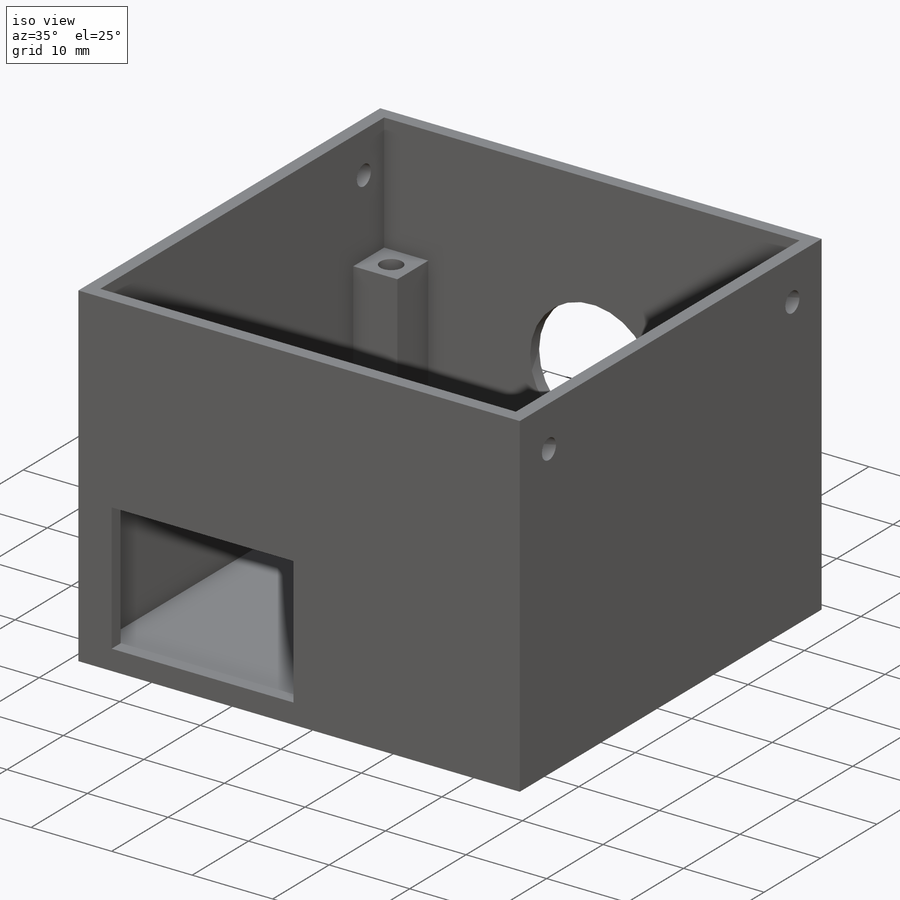
[diagram: iso view]
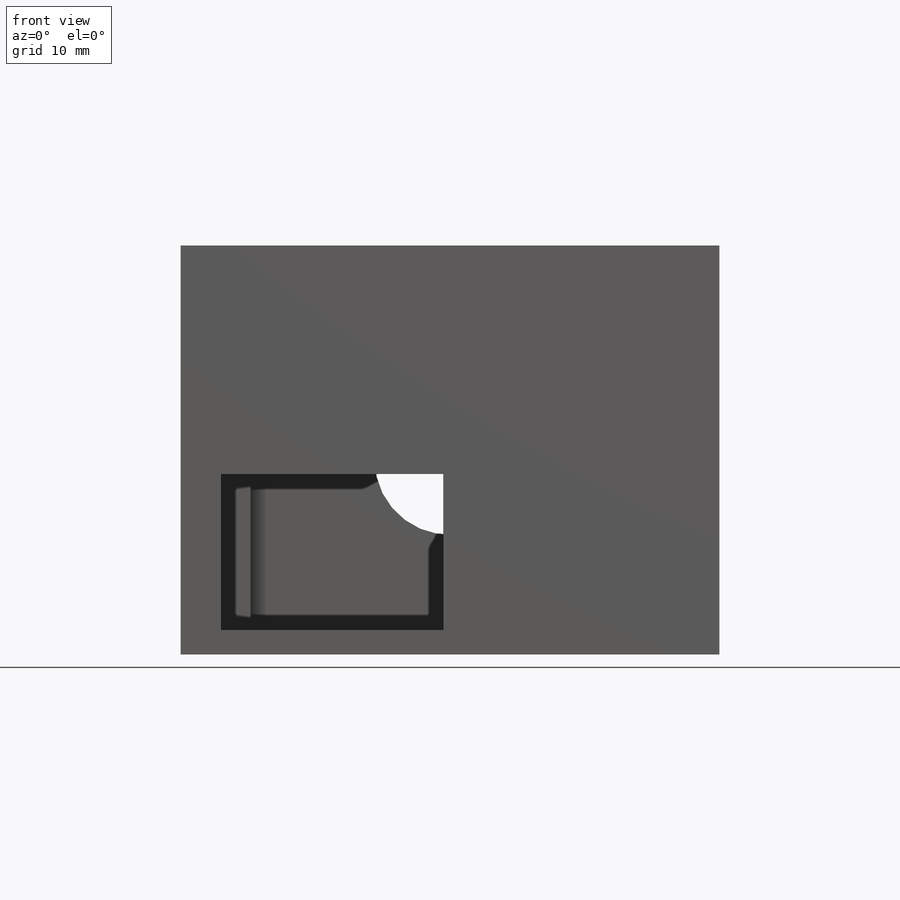
[diagram: front view]
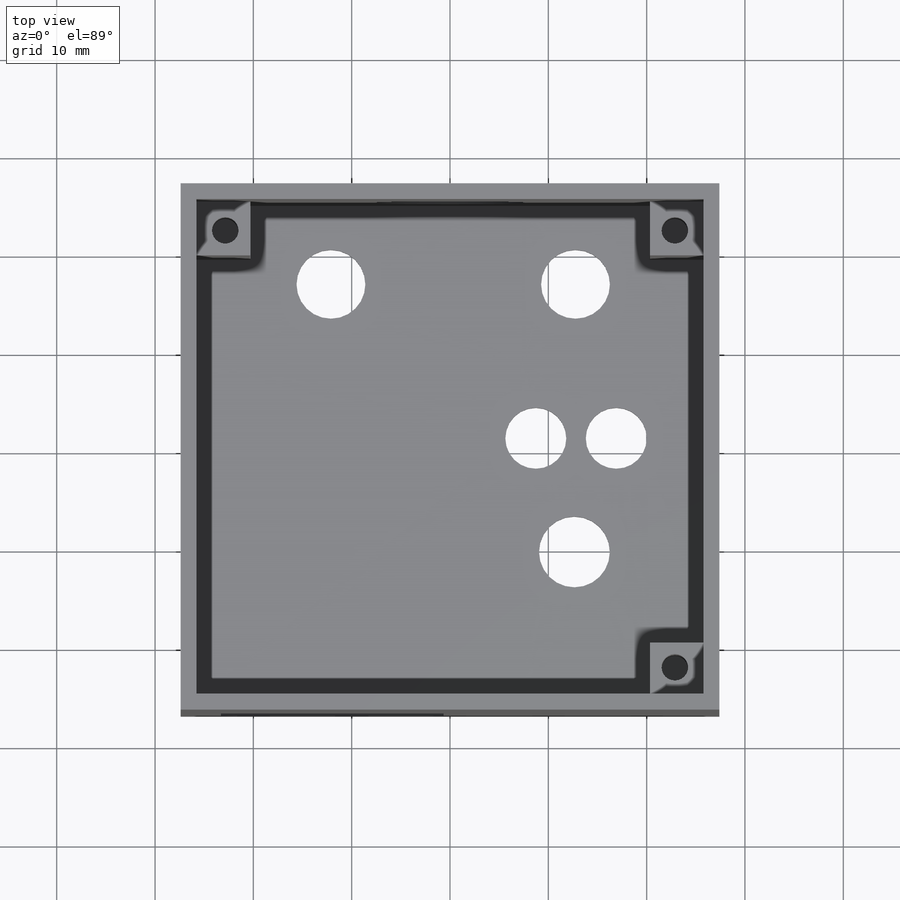
[diagram: top view]
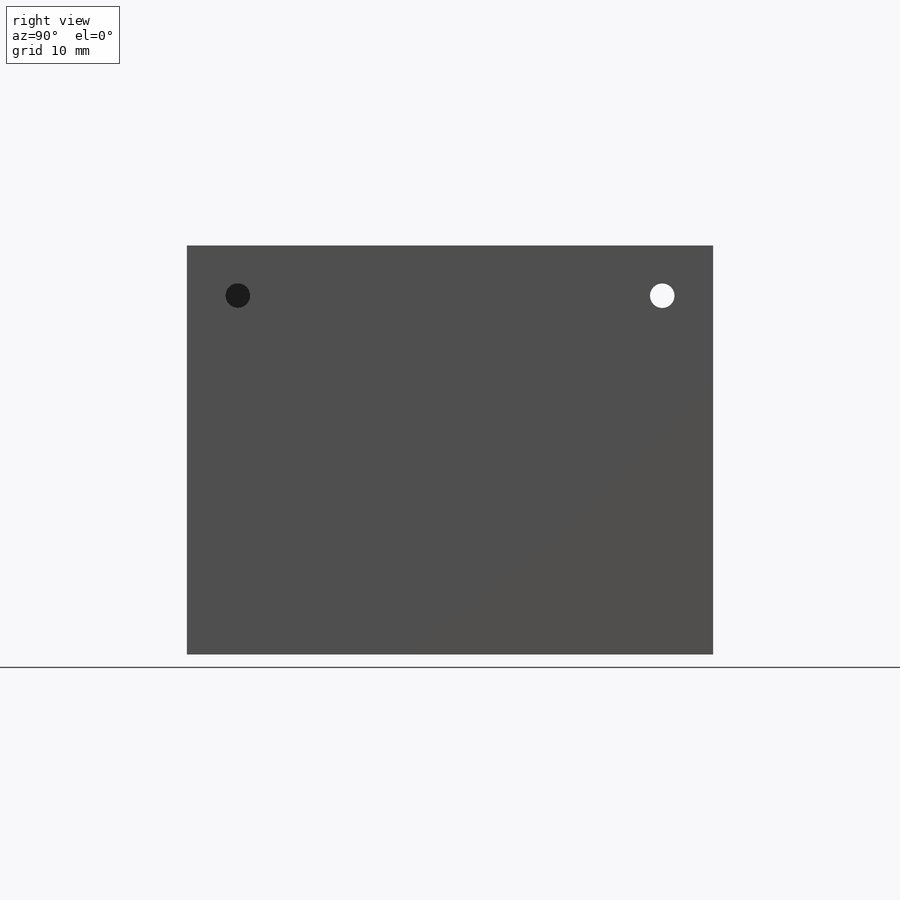
[diagram: right view]
SOLIDWORKS PART (.sldprt)
format: sldprt  version: not decoded by parser v0  size: 536,064 bytes
history: native  units: mm
features: sketch x12, cut_extrude x10, extrude x2, material x1 (+13 scaffold rows collapsed)
feature tree (38):
  scaffold x13  (default folders/planes/origin — collapsed)
  material  "Material <not specified>"
  sketch  "Sketch1"  dims[D1=54.8mm D2=53.53mm]
  extrude  "Boss-Extrude1"  Depth=41.6mm
  sketch  "Sketch2"  dims[D1=1.6mm D2=1.6mm D3=49.53mm]
  cut_extrude  "Cut-Extrude1"  Depth=39.6mm
  sketch  "Sketch3"  dims[D1=5.48mm D2=5.48mm D3=5.48mm D4=5.48mm D5=5.48mm D6=5.48mm]
  extrude  "Boss-Extrude2"  Depth=25mm
  sketch  "Sketch4"  dims[c1.D1=~1.697648mm c1.D3=1.8965mm c1.D5=~1.785145mm c2.D1=2.54mm c2.D2=~3.61775mm c3.D2=90.0deg c4.D2=2.54mm c4.D3=2.54mm c4.D4=2.54mm c4.D5=2.54mm c4.D6=2.54mm c4.D7=~44.442114mm]
  cut_extrude  "Cut-Extrude2"  Depth=10mm
  sketch  "Sketch5"  dims[D1=3.225mm]
  cut_extrude  "Cut-Extrude3"  [1 undecoded]
  sketch  "Sketch6"  dims[D1=2.0mm]
  cut_extrude  "Cut-Extrude4"  [1 undecoded]
  sketch  "Sketch7"  dims[D1=3.5mm]
  cut_extrude  "Cut-Extrude5"  [1 undecoded]
  sketch  "Sketch8"  dims[D1=5.11mm D2=5.18mm]
  cut_extrude  "Cut-Extrude6"  [1 undecoded]
  sketch  "Sketch10"  dims[D1=5.11mm D2=5.18mm]
  cut_extrude  "Cut-Extrude7"  [1 undecoded]
  sketch  "Sketch12"  dims[D1=~7.370236mm]
  cut_extrude  "Cut-Extrude8"  [1 undecoded]
  sketch  "Sketch13"  dims[D1=2.5mm D2=~22.581735mm]
  cut_extrude  "Cut-Extrude9"  [1 undecoded]
  sketch  "Sketch14"  dims[c1.D1=5.11mm c1.D2=~6.718467mm c2.D2=90.0deg c3.D2=5.18mm]
  cut_extrude  "Cut-Extrude10"  [1 undecoded]
decode coverage: 16 of 24 modeling features carry decoded parameters
note: ~ marks probable driven/reference dimensions
note: 8 parameter values undecoded
summary: no parameter record found for 8 features
note: suppression state not decoded; provenance and decode notes live in map.json
